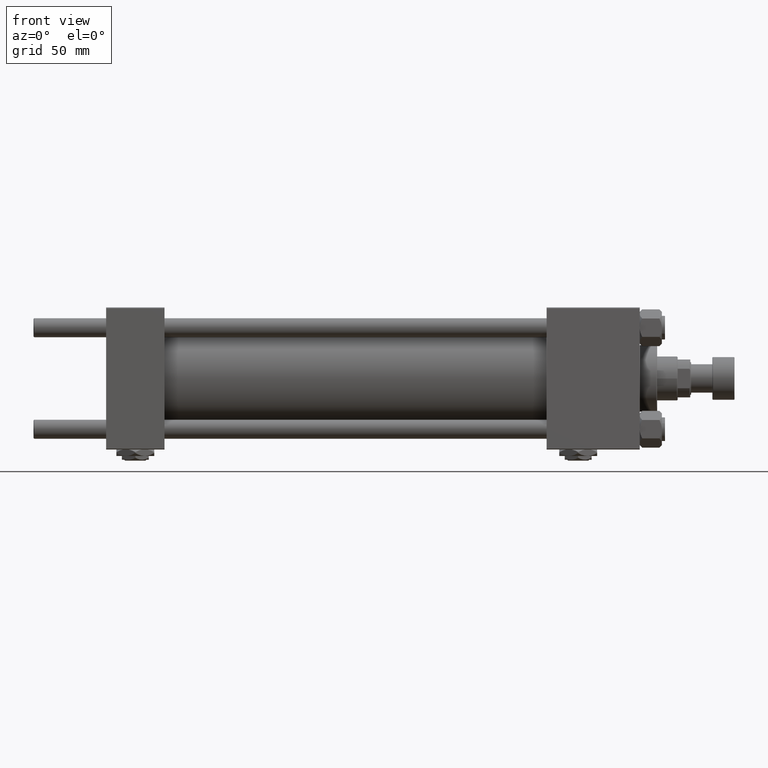
[diagram: clean part render]
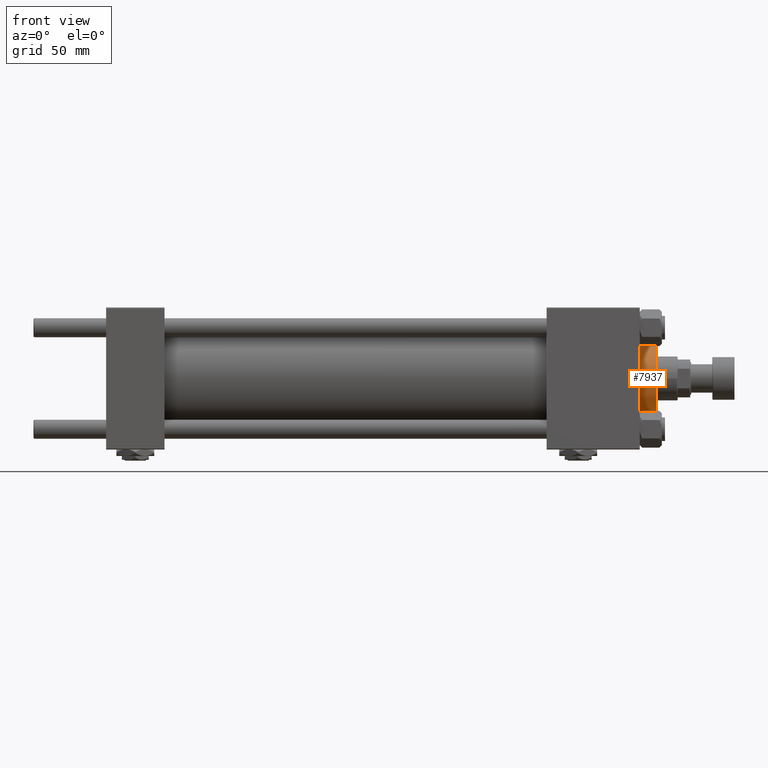
[diagram: same view with one face highlighted and labeled with its STEP entity id]
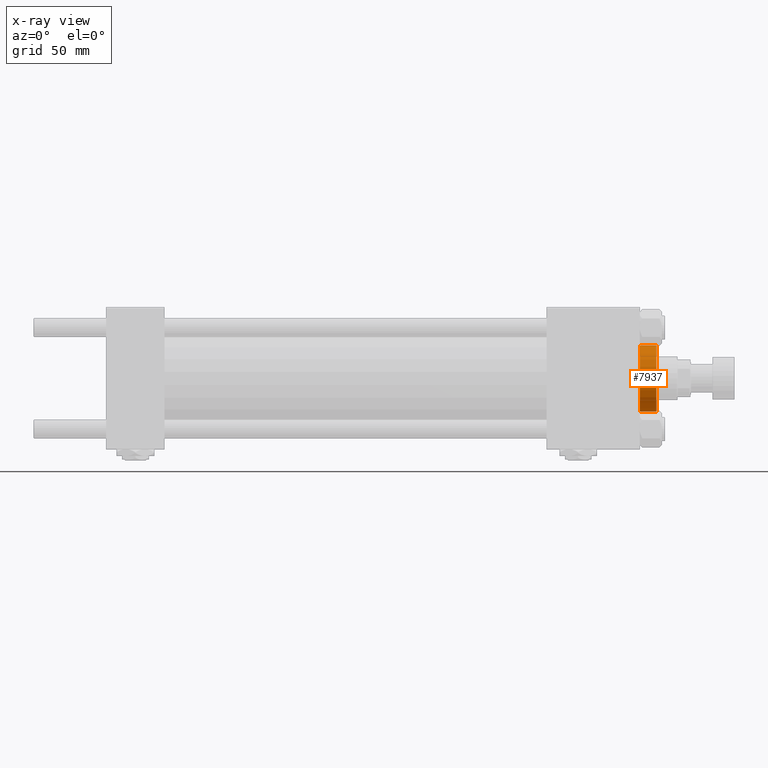
[diagram: x-ray of the same camera — body ghosted, the highlighted face saturated]
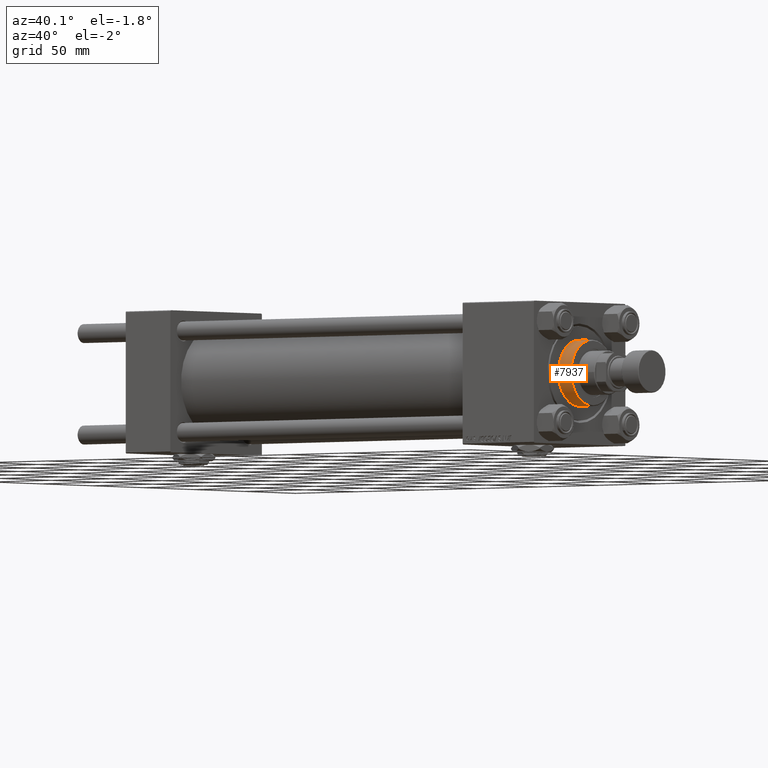
[diagram: same view with one face highlighted and labeled with its STEP entity id]
A machine part, front view. The second image highlights one B-rep face of the part: STEP entity #7937.
The next image is the same camera in x-ray: the body ghosted, the highlighted face saturated — about 0% of this face is hidden behind the body in this view.
A second angle (auxiliary view) of the same face is appended — the face is thin or edge-on in the first view.
In plain terms, the highlighted cylindrical surface (edge-blend (fillet) strip) has radius 21 mm, axis along (-1, -0, 0).
Its self-contained STEP definition (entity closure, byte-faithful):
#1140 = CYLINDRICAL_SURFACE ( 'NONE', #28701, 21.00000000000000000 ) ;
#1470 = CARTESIAN_POINT ( 'NONE',  ( 0.000000000000000000, 0.000000000000000000, 39.19999999999999574 ) ) ;
#1780 = VERTEX_POINT ( 'NONE', #30516 ) ;
#2647 = CARTESIAN_POINT ( 'NONE',  ( -21.00000000000000000, 0.000000000000000000, 39.69999999999999574 ) ) ;
#4128 = DIRECTION ( 'NONE',  ( -0.000000000000000000, -0.000000000000000000, -1.000000000000000000 ) ) ;
#4829 = DIRECTION ( 'NONE',  ( -0.000000000000000000, -0.000000000000000000, -1.000000000000000000 ) ) ;
#5350 = CARTESIAN_POINT ( 'NONE',  ( 21.00000000000000000, 2.571758278209441661E-15, 39.19999999999999574 ) ) ;
#5761 = ORIENTED_EDGE ( 'NONE', *, *, #19233, .T. ) ;
#7937 = ADVANCED_FACE ( 'NONE', ( #36855 ), #1140, .T. ) ;
#10276 = CARTESIAN_POINT ( 'NONE',  ( -21.00000000000000000, 0.000000000000000000, 28.69999999999999929 ) ) ;
#11820 = CARTESIAN_POINT ( 'NONE',  ( 21.00000000000000000, 2.571758278209441661E-15, 39.69999999999999574 ) ) ;
#16759 = DIRECTION ( 'NONE',  ( -1.000000000000000000, 0.000000000000000000, 0.000000000000000000 ) ) ;
#16774 = VERTEX_POINT ( 'NONE', #10276 ) ;
#17294 = CARTESIAN_POINT ( 'NONE',  ( 0.000000000000000000, 0.000000000000000000, 39.69999999999999574 ) ) ;
#17740 = EDGE_LOOP ( 'NONE', ( #37098, #37683, #47655, #5761 ) ) ;
#18334 = AXIS2_PLACEMENT_3D ( 'NONE', #46425, #41423, #37459 ) ;
#19211 = EDGE_CURVE ( 'NONE', #32150, #1780, #20866, .T. ) ;
#19233 = EDGE_CURVE ( 'NONE', #16774, #32413, #41130, .T. ) ;
#20866 = CIRCLE ( 'NONE', #36067, 21.00000000000000000 ) ;
#22115 = DIRECTION ( 'NONE',  ( 1.000000000000000000, 0.000000000000000000, 0.000000000000000000 ) ) ;
#23126 = VECTOR ( 'NONE', #4128, 1000.000000000000000 ) ;
#28701 = AXIS2_PLACEMENT_3D ( 'NONE', #17294, #4829, #16759 ) ;
#28846 = CARTESIAN_POINT ( 'NONE',  ( 21.00000000000000000, 2.571758278209441661E-15, 28.69999999999999929 ) ) ;
#30516 = CARTESIAN_POINT ( 'NONE',  ( -21.00000000000000000, 0.000000000000000000, 39.19999999999999574 ) ) ;
#32150 = VERTEX_POINT ( 'NONE', #5350 ) ;
#32413 = VERTEX_POINT ( 'NONE', #28846 ) ;
#34928 = DIRECTION ( 'NONE',  ( -0.000000000000000000, -0.000000000000000000, -1.000000000000000000 ) ) ;
#36067 = AXIS2_PLACEMENT_3D ( 'NONE', #1470, #50392, #22115 ) ;
#36855 = FACE_OUTER_BOUND ( 'NONE', #17740, .T. ) ;
#37098 = ORIENTED_EDGE ( 'NONE', *, *, #50099, .F. ) ;
#37459 = DIRECTION ( 'NONE',  ( 1.000000000000000000, 0.000000000000000000, 0.000000000000000000 ) ) ;
#37683 = ORIENTED_EDGE ( 'NONE', *, *, #19211, .T. ) ;
#38645 = LINE ( 'NONE', #2647, #41723 ) ;
#39637 = EDGE_CURVE ( 'NONE', #1780, #16774, #38645, .T. ) ;
#41130 = CIRCLE ( 'NONE', #18334, 21.00000000000000000 ) ;
#41423 = DIRECTION ( 'NONE',  ( 0.000000000000000000, 0.000000000000000000, 1.000000000000000000 ) ) ;
#41723 = VECTOR ( 'NONE', #34928, 1000.000000000000000 ) ;
#46425 = CARTESIAN_POINT ( 'NONE',  ( 0.000000000000000000, 0.000000000000000000, 28.69999999999999929 ) ) ;
#47655 = ORIENTED_EDGE ( 'NONE', *, *, #39637, .T. ) ;
#50099 = EDGE_CURVE ( 'NONE', #32150, #32413, #51498, .T. ) ;
#50392 = DIRECTION ( 'NONE',  ( 0.000000000000000000, 0.000000000000000000, -1.000000000000000000 ) ) ;
#51498 = LINE ( 'NONE', #11820, #23126 ) ;